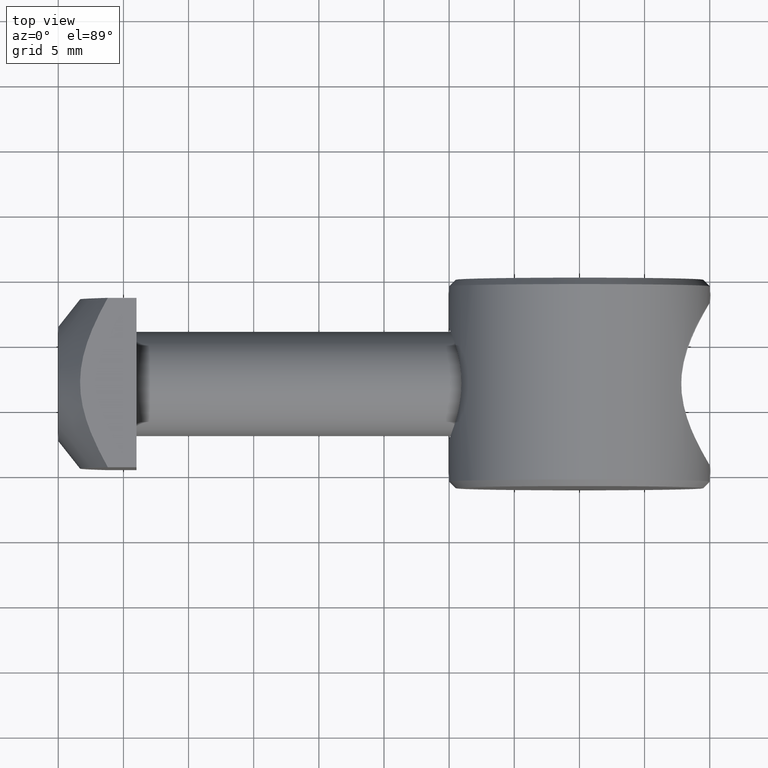
[diagram: clean part render]
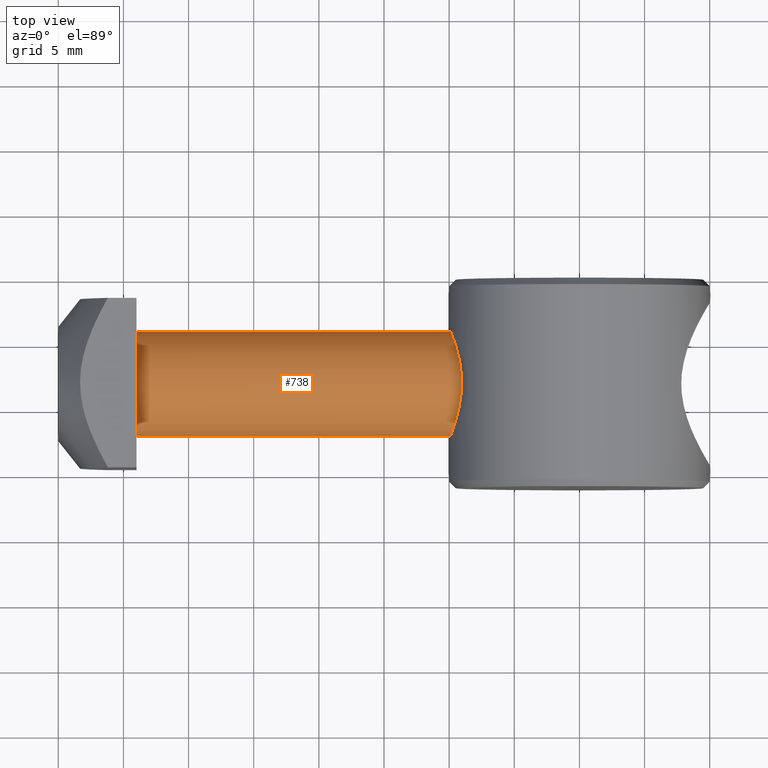
[diagram: same view with one face highlighted and labeled with its STEP entity id]
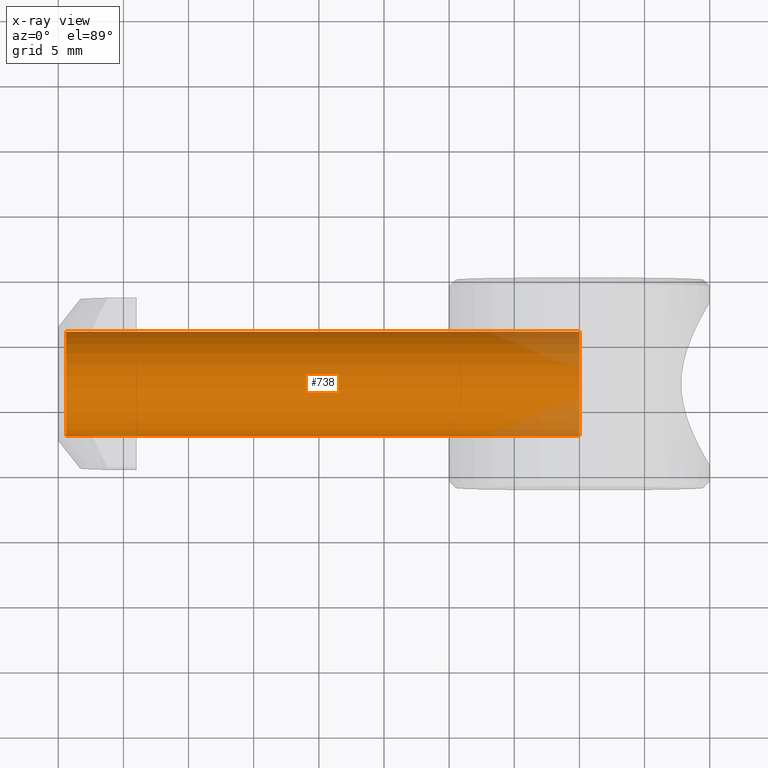
[diagram: x-ray of the same camera — body ghosted, the highlighted face saturated]
A machine part, top view. The second image highlights one B-rep face of the part: STEP entity #738.
The next image is the same camera in x-ray: the body ghosted, the highlighted face saturated — about 7% of this face is hidden behind the body in this view.
In plain terms, the highlighted cylindrical surface (bore or boss wall) has radius 4 mm, axis along (-1, 0, 0).
Its self-contained STEP definition (entity closure, byte-faithful):
#688=CARTESIAN_POINT('',(-39.399999999842748,-7.999999999968168,0.0));
#689=DIRECTION('',(-1.0,0.0,0.0));
#690=DIRECTION('',(0.0,-1.0,0.0));
#691=AXIS2_PLACEMENT_3D('',#688,#689,#690);
#692=CYLINDRICAL_SURFACE('',#691,3.999999999984084);
#693=CARTESIAN_POINT('',(-39.399999999842748,-11.999999999952252,0.0));
#694=VERTEX_POINT('',#693);
#695=CARTESIAN_POINT('',(-4.547474E-013,-11.999999999952252,0.0));
#696=VERTEX_POINT('',#695);
#697=CARTESIAN_POINT('',(-39.399999999842748,-11.999999999952252,0.0));
#698=DIRECTION('',(1.0,0.0,0.0));
#699=VECTOR('',#698,39.399999999842294);
#700=LINE('',#697,#699);
#701=EDGE_CURVE('',#694,#696,#700,.T.);
#702=ORIENTED_EDGE('',*,*,#701,.T.);
#703=CARTESIAN_POINT('',(-4.547474E-013,-3.999999999984084,0.0));
#704=VERTEX_POINT('',#703);
#705=CARTESIAN_POINT('',(-4.547474E-013,-7.999999999968168,0.0));
#706=DIRECTION('',(-1.0,0.0,0.0));
#707=DIRECTION('',(0.0,-1.0,0.0));
#708=AXIS2_PLACEMENT_3D('',#705,#706,#707);
#709=CIRCLE('',#708,3.999999999984084);
#710=EDGE_CURVE('',#696,#704,#709,.T.);
#711=ORIENTED_EDGE('',*,*,#710,.T.);
#712=CARTESIAN_POINT('',(-4.547474E-013,-7.999999999968168,0.0));
#713=DIRECTION('',(-1.0,0.0,0.0));
#714=DIRECTION('',(0.0,-1.0,0.0));
#715=AXIS2_PLACEMENT_3D('',#712,#713,#714);
#716=CIRCLE('',#715,3.999999999984084);
#717=EDGE_CURVE('',#704,#696,#716,.T.);
#718=ORIENTED_EDGE('',*,*,#717,.T.);
#719=ORIENTED_EDGE('',*,*,#701,.F.);
#720=CARTESIAN_POINT('',(-39.399999999842748,-3.999999999984084,0.0));
#721=VERTEX_POINT('',#720);
#722=CARTESIAN_POINT('',(-39.399999999842748,-7.999999999968168,0.0));
#723=DIRECTION('',(-1.0,0.0,0.0));
#724=DIRECTION('',(0.0,-1.0,0.0));
#725=AXIS2_PLACEMENT_3D('',#722,#723,#724);
#726=CIRCLE('',#725,3.999999999984084);
#727=EDGE_CURVE('',#721,#694,#726,.T.);
#728=ORIENTED_EDGE('',*,*,#727,.F.);
#729=CARTESIAN_POINT('',(-39.399999999842748,-7.999999999968168,0.0));
#730=DIRECTION('',(-1.0,0.0,0.0));
#731=DIRECTION('',(0.0,-1.0,0.0));
#732=AXIS2_PLACEMENT_3D('',#729,#730,#731);
#733=CIRCLE('',#732,3.999999999984084);
#734=EDGE_CURVE('',#694,#721,#733,.T.);
#735=ORIENTED_EDGE('',*,*,#734,.F.);
#736=EDGE_LOOP('',(#702,#711,#718,#719,#728,#735));
#737=FACE_OUTER_BOUND('',#736,.T.);
#738=ADVANCED_FACE('',(#737),#692,.T.);